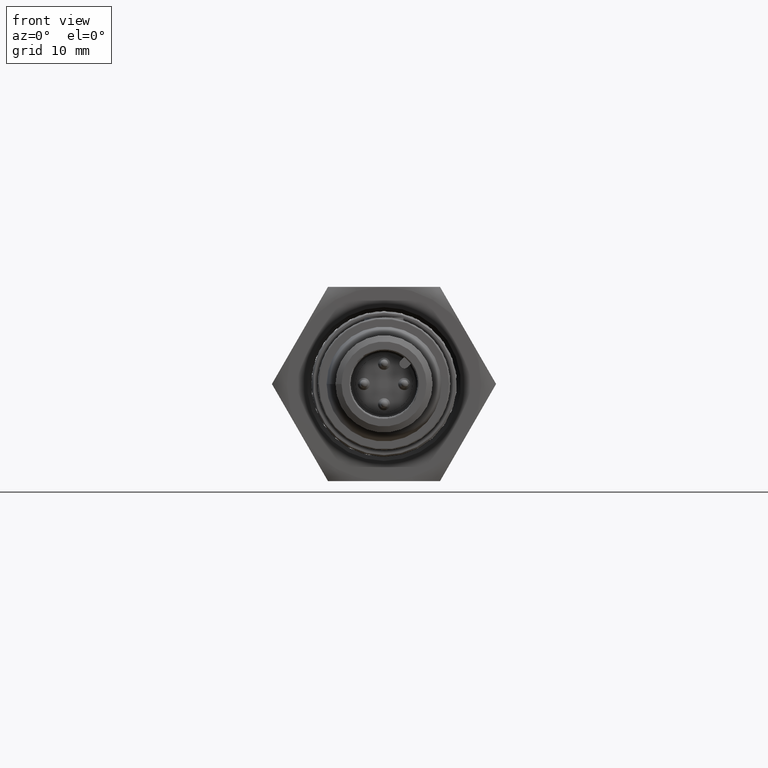
[diagram: clean part render]
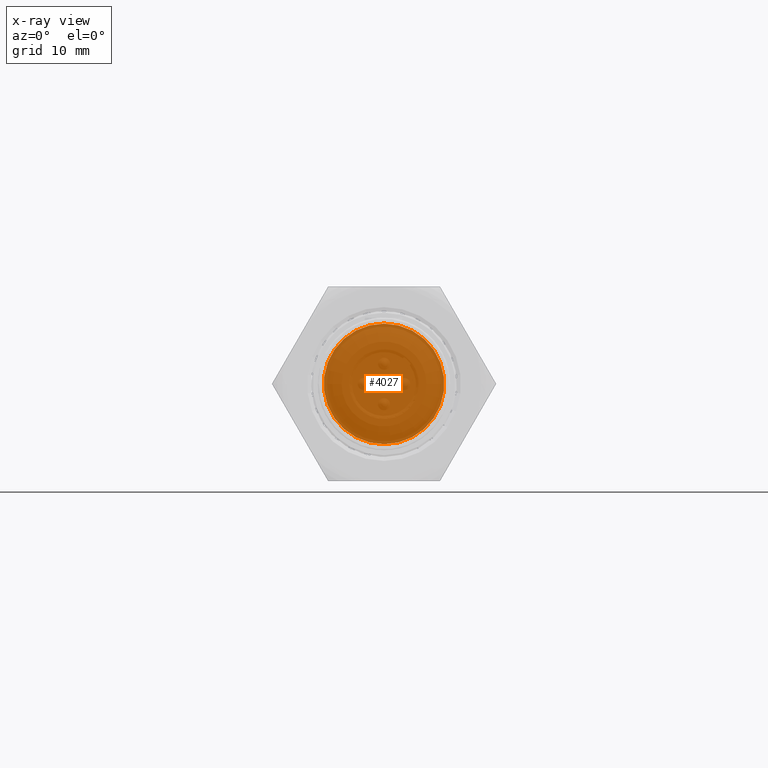
[diagram: x-ray — body ghosted, one internal face saturated and labeled with its STEP entity id]
A machine part, front view, then the same camera in x-ray: the body is ghosted and one INTERNAL B-rep face — a face not visible from any outside direction — is saturated and labeled: STEP entity #4027.
In plain terms, the highlighted planar face has unit normal (-0, -1, -0).
Its self-contained STEP definition (entity closure, byte-faithful):
#55 = EDGE_LOOP ( 'NONE', ( #3790 ) ) ;
#98 = PLANE ( 'NONE',  #2194 ) ;
#868 = AXIS2_PLACEMENT_3D ( 'NONE', #4334, #2539, #3993 ) ;
#1128 = DIRECTION ( 'NONE',  ( -1.836970198720940189E-30, -1.000000000000000000, -1.836970198720939462E-16 ) ) ;
#1822 = EDGE_CURVE ( 'NONE', #2483, #2483, #2801, .T. ) ;
#1871 = CARTESIAN_POINT ( 'NONE',  ( 5.174039785920630775E-28, 1.522284657321547163, -0.003432467005735661755 ) ) ;
#2069 = CARTESIAN_POINT ( 'NONE',  ( 2.933070866125293509E-15, 1.522284657321547163, 0.2898746196067419345 ) ) ;
#2194 = AXIS2_PLACEMENT_3D ( 'NONE', #1871, #1128, #3259 ) ;
#2483 = VERTEX_POINT ( 'NONE', #2069 ) ;
#2539 = DIRECTION ( 'NONE',  ( 0.000000000000000000, 1.000000000000000000, 0.000000000000000000 ) ) ;
#2801 = CIRCLE ( 'NONE', #868, 0.2933070866129464660 ) ;
#3259 = DIRECTION ( 'NONE',  ( 0.000000000000000000, 1.836970198720939462E-16, -1.000000000000000000 ) ) ;
#3633 = FACE_OUTER_BOUND ( 'NONE', #55, .T. ) ;
#3790 = ORIENTED_EDGE ( 'NONE', *, *, #1822, .F. ) ;
#3993 = DIRECTION ( 'NONE',  ( 9.999999999999999988E-15, 0.000000000000000000, 1.000000000000000000 ) ) ;
#4027 = ADVANCED_FACE ( 'NONE', ( #3633 ), #98, .T. ) ;
#4334 = CARTESIAN_POINT ( 'NONE',  ( -4.171423403833267465E-27, 1.522284657321547163, -0.003432467006204543199 ) ) ;